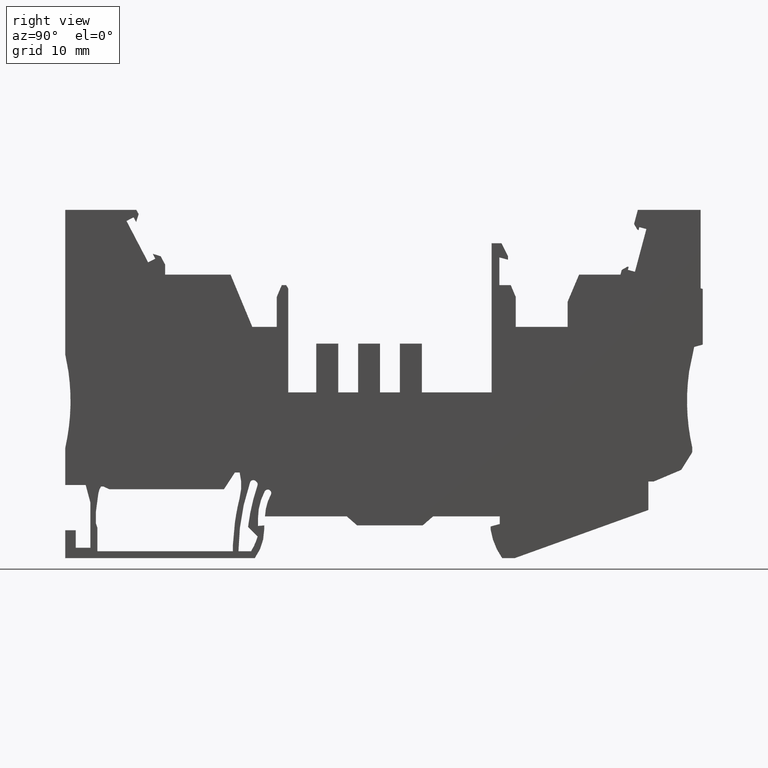
[diagram: clean part render]
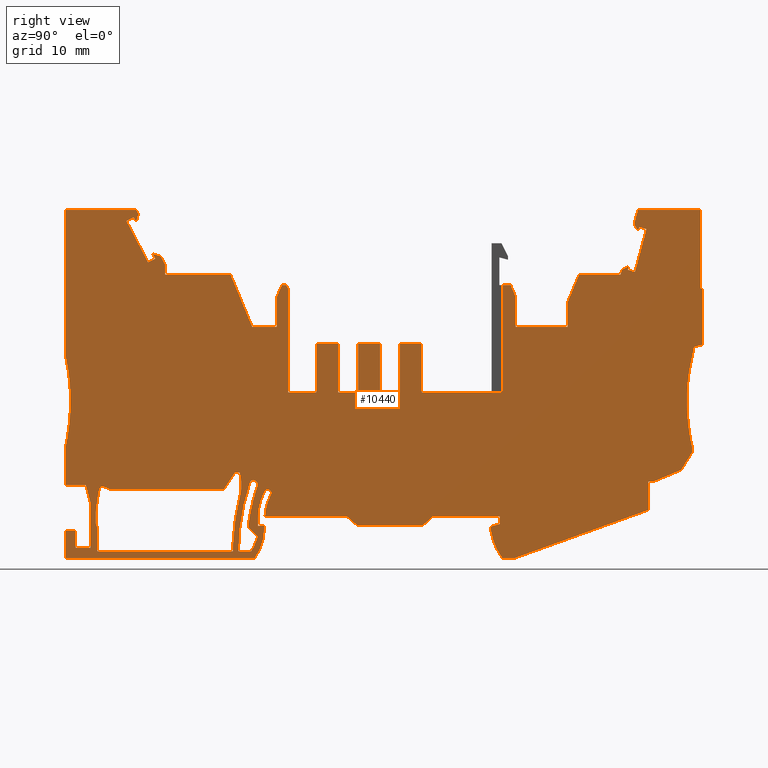
[diagram: same view with one face highlighted and labeled with its STEP entity id]
A machine part, right view. The second image highlights one B-rep face of the part: STEP entity #10440.
In plain terms, the highlighted planar face has unit normal (1, 0, 0).
Its self-contained STEP definition (entity closure, byte-faithful):
#10=CARTESIAN_POINT('',(33.06721397161,-23.3,-6.15));
#20=DIRECTION('',(0.,0.,-1.));
#30=DIRECTION('',(-1.,0.,0.));
#40=AXIS2_PLACEMENT_3D('',#10,#20,#30);
#50=PLANE('',#40);
#60=CARTESIAN_POINT('',(22.5349209169326,-21.8368804165049,-6.15));
#70=DIRECTION('',(3.20064295387432E-15,-1.,0.));
#80=VECTOR('',#70,1.);
#90=LINE('',#60,#80);
#100=CARTESIAN_POINT('',(22.5349209169326,-21.836880416505,-6.15));
#110=VERTEX_POINT('',#100);
#120=CARTESIAN_POINT('',(22.5349209169326,-22.8,-6.15));
#130=VERTEX_POINT('',#120);
#140=EDGE_CURVE('',#110,#130,#90,.T.);
#150=ORIENTED_EDGE('',*,*,#140,.T.);
#160=CARTESIAN_POINT('',(20.5729695493492,0.,-6.15));
#170=DIRECTION('',(0.0894853229047894,-0.995988140985939,0.));
#180=VECTOR('',#170,1.);
#190=LINE('',#160,#180);
#200=CARTESIAN_POINT('',(22.2532908740637,-18.7022861195023,
-6.14999999999988));
#210=VERTEX_POINT('',#200);
#220=EDGE_CURVE('',#210,#110,#190,.T.);
#230=ORIENTED_EDGE('',*,*,#220,.T.);
#240=CARTESIAN_POINT('',(-9.55770809486729,-23.0000000000054,-6.15));
#250=DIRECTION('',(-3.15698436483956E-30,2.78809917608406E-14,-1.));
#260=DIRECTION('',(-1.11140263658882E-12,1.,2.78809917608406E-14));
#270=AXIS2_PLACEMENT_3D('',#240,#250,#260);
#280=CIRCLE('',#270,32.1);
#290=CARTESIAN_POINT('',(21.5695646324235,-15.1576220085502,
-6.15000030391425));
#300=VERTEX_POINT('',#290);
#310=EDGE_CURVE('',#300,#210,#280,.T.);
#320=ORIENTED_EDGE('',*,*,#310,.T.);
#330=CARTESIAN_POINT('',(28.8422919051509,-13.3252907021191,
-6.15000030436831));
#340=DIRECTION('',(-3.15698436483956E-30,2.78809917608406E-14,-1.));
#350=DIRECTION('',(-1.11140263658882E-12,1.,2.78791571475182E-14));
#360=AXIS2_PLACEMENT_3D('',#330,#340,#350);
#370=CIRCLE('',#360,7.5);
#380=CARTESIAN_POINT('',(21.5677944074683,-11.4999999975433,
-6.14999999999995));
#390=VERTEX_POINT('',#380);
#400=EDGE_CURVE('',#300,#390,#370,.T.);
#410=ORIENTED_EDGE('',*,*,#400,.F.);
#420=CARTESIAN_POINT('',(0.,-11.4999999957847,-6.15));
#430=DIRECTION('',(-1.,8.15373601970037E-11,0.));
#440=VECTOR('',#430,1.);
#450=LINE('',#420,#440);
#460=CARTESIAN_POINT('',(22.2428308127525,-11.50013943746,-6.15));
#470=VERTEX_POINT('',#460);
#480=EDGE_CURVE('',#470,#390,#450,.T.);
#490=ORIENTED_EDGE('',*,*,#480,.T.);
#500=CARTESIAN_POINT('',(14.6514870362543,0.,-6.15));
#510=DIRECTION('',(0.550905483155108,-0.834567641734112,0.));
#520=VECTOR('',#510,1.);
#530=LINE('',#500,#520);
#540=CARTESIAN_POINT('',(23.8270000000024,-13.9,-6.15));
#550=VERTEX_POINT('',#540);
#560=EDGE_CURVE('',#470,#550,#530,.T.);
#570=ORIENTED_EDGE('',*,*,#560,.F.);
#580=CARTESIAN_POINT('',(39.2,-13.9,-6.15));
#590=DIRECTION('',(1.,0.,0.));
#600=VECTOR('',#590,1.);
#610=LINE('',#580,#600);
#620=CARTESIAN_POINT('',(40.2999878562288,-13.9,-6.15));
#630=VERTEX_POINT('',#620);
#640=EDGE_CURVE('',#550,#630,#610,.T.);
#650=ORIENTED_EDGE('',*,*,#640,.F.);
#660=CARTESIAN_POINT('',(40.4028689549508,-13.8504536541632,-6.15));
#670=DIRECTION('',(0.900964006862371,0.433893833026585,0.));
#680=VECTOR('',#670,1.);
#690=LINE('',#660,#680);
#700=CARTESIAN_POINT('',(41.0911584410494,-13.51898140768,-6.15));
#710=VERTEX_POINT('',#700);
#720=EDGE_CURVE('',#630,#710,#690,.T.);
#730=ORIENTED_EDGE('',*,*,#720,.F.);
#740=CARTESIAN_POINT('',(41.79721397161,-13.51898140768,-6.15));
#750=DIRECTION('',(-1.,0.,0.));
#760=VECTOR('',#750,1.);
#770=LINE('',#740,#760);
#780=CARTESIAN_POINT('',(41.4591654945625,-13.51898140768,-6.15));
#790=VERTEX_POINT('',#780);
#800=EDGE_CURVE('',#790,#710,#770,.T.);
#810=ORIENTED_EDGE('',*,*,#800,.T.);
#820=CARTESIAN_POINT('',(41.6881023294153,-13.88957188511,-6.15));
#830=DIRECTION('',(-0.525563862455609,0.850754151609466,0.));
#840=VECTOR('',#830,1.);
#850=LINE('',#820,#840);
#860=CARTESIAN_POINT('',(41.6881023294153,-13.88957188511,-6.15));
#870=VERTEX_POINT('',#860);
#880=EDGE_CURVE('',#870,#790,#850,.T.);
#890=ORIENTED_EDGE('',*,*,#880,.T.);
#900=CARTESIAN_POINT('',(41.6881023294144,-13.889571885099,-6.15));
#910=DIRECTION('',(0.258819045102494,-0.965925826289075,0.));
#920=VECTOR('',#910,1.);
#930=LINE('',#900,#920);
#940=CARTESIAN_POINT('',(41.8592582628925,-14.5283345248639,-6.15));
#950=VERTEX_POINT('',#940);
#960=EDGE_CURVE('',#870,#950,#930,.T.);
#970=ORIENTED_EDGE('',*,*,#960,.F.);
#980=CARTESIAN_POINT('',(41.8592582628956,-14.5283345248631,-6.15));
#990=DIRECTION('',(0.130526192219112,-0.991444861373934,0.));
#1000=VECTOR('',#990,1.);
#1010=LINE('',#980,#1000);
#1020=CARTESIAN_POINT('',(42.2,-17.11652497587,-6.15));
#1030=VERTEX_POINT('',#1020);
#1040=EDGE_CURVE('',#950,#1030,#1010,.T.);
#1050=ORIENTED_EDGE('',*,*,#1040,.F.);
#1060=CARTESIAN_POINT('',(42.2,-17.11652497587,-6.15));
#1070=DIRECTION('',(0.,-1.,0.));
#1080=VECTOR('',#1070,1.);
#1090=LINE('',#1060,#1080);
#1100=CARTESIAN_POINT('',(42.2,-18.8,-6.15));
#1110=VERTEX_POINT('',#1100);
#1120=EDGE_CURVE('',#1030,#1110,#1090,.T.);
#1130=ORIENTED_EDGE('',*,*,#1120,.F.);
#1140=CARTESIAN_POINT('',(42.2,-18.8,-6.15));
#1150=DIRECTION('',(-0.316227766016843,-0.948683298050512,0.));
#1160=VECTOR('',#1150,1.);
#1170=LINE('',#1140,#1160);
#1180=CARTESIAN_POINT('',(42.,-19.4,-6.15));
#1190=VERTEX_POINT('',#1180);
#1200=EDGE_CURVE('',#1110,#1190,#1170,.T.);
#1210=ORIENTED_EDGE('',*,*,#1200,.F.);
#1220=CARTESIAN_POINT('',(42.,-21.8,-6.15));
#1230=DIRECTION('',(0.,1.,0.));
#1240=VECTOR('',#1230,1.);
#1250=LINE('',#1220,#1240);
#1260=CARTESIAN_POINT('',(42.,-22.8,-6.15));
#1270=VERTEX_POINT('',#1260);
#1280=EDGE_CURVE('',#1270,#1190,#1250,.T.);
#1290=ORIENTED_EDGE('',*,*,#1280,.T.);
#1300=CARTESIAN_POINT('',(41.,-22.8,-6.15));
#1310=DIRECTION('',(-1.,0.,0.));
#1320=VECTOR('',#1310,1.);
#1330=LINE('',#1300,#1320);
#1340=EDGE_CURVE('',#1270,#130,#1330,.T.);
#1350=ORIENTED_EDGE('',*,*,#1340,.F.);
#1360=EDGE_LOOP('',(#1350,#1290,#1210,#1130,#1050,#970,#890,#810,#730,
#650,#570,#490,#410,#320,#230,#150));
#1370=FACE_BOUND('',#1360,.T.);
#1380=CARTESIAN_POINT('',(39.680769536223,0.,-6.15));
#1390=DIRECTION('',(-0.707106781186545,-0.70710678118655,0.));
#1400=VECTOR('',#1390,1.);
#1410=LINE('',#1380,#1400);
#1420=CARTESIAN_POINT('',(20.3661974207547,-19.3145721154684,
-6.1499999999999));
#1430=VERTEX_POINT('',#1420);
#1440=CARTESIAN_POINT('',(18.9864747969789,-20.6942947392442,
-6.15000000000007));
#1450=VERTEX_POINT('',#1440);
#1460=EDGE_CURVE('',#1430,#1450,#1410,.T.);
#1470=ORIENTED_EDGE('',*,*,#1460,.T.);
#1480=CARTESIAN_POINT('',(-9.55770809486737,-23.0000000000054,
-6.15000030197086));
#1490=DIRECTION('',(-3.15698436483956E-30,2.78809917608406E-14,-1.));
#1500=DIRECTION('',(-1.11140263658882E-12,1.,2.78791571475182E-14));
#1510=AXIS2_PLACEMENT_3D('',#1480,#1490,#1500);
#1520=CIRCLE('',#1510,30.15);
#1530=CARTESIAN_POINT('',(19.0113243592572,-13.3650176629599,-6.15));
#1540=VERTEX_POINT('',#1530);
#1550=EDGE_CURVE('',#1540,#1430,#1520,.T.);
#1560=ORIENTED_EDGE('',*,*,#1550,.T.);
#1570=CARTESIAN_POINT('',(19.4851059920122,-13.2052335446502,
-6.15000030378414));
#1580=DIRECTION('',(-3.15698436483956E-30,2.78809917608406E-14,-1.));
#1590=DIRECTION('',(-1.11140263658882E-12,1.,2.78791571475182E-14));
#1600=AXIS2_PLACEMENT_3D('',#1570,#1580,#1590);
#1610=CIRCLE('',#1600,0.5);
#1620=CARTESIAN_POINT('',(19.1545070239092,-12.830127796959,-6.15));
#1630=VERTEX_POINT('',#1620);
#1640=EDGE_CURVE('',#1540,#1630,#1610,.T.);
#1650=ORIENTED_EDGE('',*,*,#1640,.F.);
#1660=CARTESIAN_POINT('',(0.,-29.711927917599,-6.15));
#1670=DIRECTION('',(-0.750211495889927,-0.661197936653313,0.));
#1680=VECTOR('',#1670,1.);
#1690=LINE('',#1660,#1680);
#1700=CARTESIAN_POINT('',(19.2764839618995,-12.7226235796011,-6.15));
#1710=VERTEX_POINT('',#1700);
#1720=EDGE_CURVE('',#1710,#1630,#1690,.T.);
#1730=ORIENTED_EDGE('',*,*,#1720,.T.);
#1740=CARTESIAN_POINT('',(19.6070829300025,-13.0977293272924,
-6.15000030379175));
#1750=DIRECTION('',(-3.15698436483956E-30,2.78809917608406E-14,-1.));
#1760=DIRECTION('',(-1.11140263658882E-12,1.,2.78791571475182E-14));
#1770=AXIS2_PLACEMENT_3D('',#1740,#1750,#1760);
#1780=CIRCLE('',#1770,0.5);
#1790=CARTESIAN_POINT('',(20.0805373297395,-12.9369781799569,
-6.14999999999972));
#1800=VERTEX_POINT('',#1790);
#1810=EDGE_CURVE('',#1710,#1800,#1780,.T.);
#1820=ORIENTED_EDGE('',*,*,#1810,.F.);
#1830=CARTESIAN_POINT('',(-9.55770809486729,-23.0000000000054,
-6.15000030197086));
#1840=DIRECTION('',(-3.15698436483956E-30,2.78809917608406E-14,-1.));
#1850=DIRECTION('',(-1.11140263658882E-12,1.,2.78791571475182E-14));
#1860=AXIS2_PLACEMENT_3D('',#1830,#1840,#1850);
#1870=CIRCLE('',#1860,31.3);
#1880=CARTESIAN_POINT('',(21.7416529209746,-22.8000000000054,-6.15));
#1890=VERTEX_POINT('',#1880);
#1900=EDGE_CURVE('',#1800,#1890,#1870,.T.);
#1910=ORIENTED_EDGE('',*,*,#1900,.F.);
#1920=CARTESIAN_POINT('',(0.,-22.8000000000054,-6.15));
#1930=DIRECTION('',(1.,8.32667268468868E-17,0.));
#1940=VECTOR('',#1930,1.);
#1950=LINE('',#1920,#1940);
#1960=CARTESIAN_POINT('',(19.9311893542047,-22.8000000000054,
-6.15000000000013));
#1970=VERTEX_POINT('',#1960);
#1980=EDGE_CURVE('',#1970,#1890,#1950,.T.);
#1990=ORIENTED_EDGE('',*,*,#1980,.T.);
#2000=CARTESIAN_POINT('',(27.1422919051327,-18.3000000000054,
-6.15000030426214));
#2010=DIRECTION('',(-3.15698436483956E-30,2.78809917608406E-14,-1.));
#2020=DIRECTION('',(-1.11140263658882E-12,1.,2.78791571475182E-14));
#2030=AXIS2_PLACEMENT_3D('',#2000,#2010,#2020);
#2040=CIRCLE('',#2030,8.5);
#2050=EDGE_CURVE('',#1970,#1450,#2040,.T.);
#2060=ORIENTED_EDGE('',*,*,#2050,.F.);
#2070=EDGE_LOOP('',(#2060,#1990,#1910,#1820,#1730,#1650,#1560,#1470));
#2080=FACE_BOUND('',#2070,.T.);
#2090=CARTESIAN_POINT('',(46.6,-20.7,-6.15));
#2100=DIRECTION('',(0.,-1.,0.));
#2110=VECTOR('',#2100,1.);
#2120=LINE('',#2090,#2110);
#2130=CARTESIAN_POINT('',(46.6,-19.8,-6.15));
#2140=VERTEX_POINT('',#2130);
#2150=CARTESIAN_POINT('',(46.6,-23.8,-6.15));
#2160=VERTEX_POINT('',#2150);
#2170=EDGE_CURVE('',#2140,#2160,#2120,.T.);
#2180=ORIENTED_EDGE('',*,*,#2170,.T.);
#2190=CARTESIAN_POINT('',(45.6,-19.8,-6.15));
#2200=DIRECTION('',(1.,0.,0.));
#2210=VECTOR('',#2200,1.);
#2220=LINE('',#2190,#2210);
#2230=CARTESIAN_POINT('',(45.1,-19.8,-6.15));
#2240=VERTEX_POINT('',#2230);
#2250=EDGE_CURVE('',#2240,#2140,#2220,.T.);
#2260=ORIENTED_EDGE('',*,*,#2250,.T.);
#2270=CARTESIAN_POINT('',(45.1,-20.3,-6.15));
#2280=DIRECTION('',(0.,-1.,0.));
#2290=VECTOR('',#2280,1.);
#2300=LINE('',#2270,#2290);
#2310=CARTESIAN_POINT('',(45.1,-22.3,-6.15));
#2320=VERTEX_POINT('',#2310);
#2330=EDGE_CURVE('',#2240,#2320,#2300,.T.);
#2340=ORIENTED_EDGE('',*,*,#2330,.F.);
#2350=CARTESIAN_POINT('',(44.6,-22.3,-6.15));
#2360=DIRECTION('',(-1.,0.,0.));
#2370=VECTOR('',#2360,1.);
#2380=LINE('',#2350,#2370);
#2390=CARTESIAN_POINT('',(43.,-22.3,-6.15));
#2400=VERTEX_POINT('',#2390);
#2410=EDGE_CURVE('',#2320,#2400,#2380,.T.);
#2420=ORIENTED_EDGE('',*,*,#2410,.F.);
#2430=CARTESIAN_POINT('',(43.,-21.3,-6.15));
#2440=DIRECTION('',(0.,1.,0.));
#2450=VECTOR('',#2440,1.);
#2460=LINE('',#2430,#2450);
#2470=CARTESIAN_POINT('',(43.,-15.800000000004,-6.15));
#2480=VERTEX_POINT('',#2470);
#2490=EDGE_CURVE('',#2400,#2480,#2460,.T.);
#2500=ORIENTED_EDGE('',*,*,#2490,.F.);
#2510=CARTESIAN_POINT('',(43.3407417370993,-14.5283345248901,-6.15));
#2520=DIRECTION('',(0.258819045102492,0.965925826289076,0.));
#2530=VECTOR('',#2520,1.);
#2540=LINE('',#2510,#2530);
#2550=CARTESIAN_POINT('',(43.6698729810788,-13.3,-6.15));
#2560=VERTEX_POINT('',#2550);
#2570=EDGE_CURVE('',#2480,#2560,#2540,.T.);
#2580=ORIENTED_EDGE('',*,*,#2570,.F.);
#2590=CARTESIAN_POINT('',(45.6,-13.3,-6.15));
#2600=DIRECTION('',(-1.,0.,0.));
#2610=VECTOR('',#2600,1.);
#2620=LINE('',#2590,#2610);
#2630=CARTESIAN_POINT('',(46.6,-13.3,-6.15));
#2640=VERTEX_POINT('',#2630);
#2650=EDGE_CURVE('',#2640,#2560,#2620,.T.);
#2660=ORIENTED_EDGE('',*,*,#2650,.T.);
#2670=CARTESIAN_POINT('',(46.6,-12.3,-6.15));
#2680=DIRECTION('',(0.,1.,0.));
#2690=VECTOR('',#2680,1.);
#2700=LINE('',#2670,#2690);
#2710=CARTESIAN_POINT('',(46.6,-7.955879883892,-6.15));
#2720=VERTEX_POINT('',#2710);
#2730=EDGE_CURVE('',#2640,#2720,#2700,.T.);
#2740=ORIENTED_EDGE('',*,*,#2730,.F.);
#2750=CARTESIAN_POINT('',(46.6,-7.955879883892,-6.15));
#2760=DIRECTION('',(-0.192949935044992,0.981208602982125,0.));
#2770=VECTOR('',#2760,1.);
#2780=LINE('',#2750,#2770);
#2790=CARTESIAN_POINT('',(46.299502422452,-6.42775908822236,-6.15));
#2800=VERTEX_POINT('',#2790);
#2810=EDGE_CURVE('',#2720,#2800,#2780,.T.);
#2820=ORIENTED_EDGE('',*,*,#2810,.F.);
#2830=CARTESIAN_POINT('',(46.2703003168786,-6.23236323195401,-6.15));
#2840=DIRECTION('',(-0.147809407142419,0.989015863957807,0.));
#2850=VECTOR('',#2840,1.);
#2860=LINE('',#2830,#2850);
#2870=CARTESIAN_POINT('',(46.0721797643816,-4.90670762461646,-6.15));
#2880=VERTEX_POINT('',#2870);
#2890=EDGE_CURVE('',#2800,#2880,#2860,.T.);
#2900=ORIENTED_EDGE('',*,*,#2890,.F.);
#2910=CARTESIAN_POINT('',(46.0500865595299,-4.67726087360203,-6.15));
#2920=DIRECTION('',(-0.0958457335408387,0.995396200194686,0.));
#2930=VECTOR('',#2920,1.);
#2940=LINE('',#2910,#2930);
#2950=CARTESIAN_POINT('',(45.9216169624126,-3.34305282816361,-6.15));
#2960=VERTEX_POINT('',#2950);
#2970=EDGE_CURVE('',#2880,#2960,#2940,.T.);
#2980=ORIENTED_EDGE('',*,*,#2970,.F.);
#2990=CARTESIAN_POINT('',(45.9115623663568,-3.11276462915628,-6.15));
#3000=DIRECTION('',(-0.043619370679043,0.999048222310397,0.));
#3010=VECTOR('',#3000,1.);
#3020=LINE('',#2990,#3010);
#3030=CARTESIAN_POINT('',(45.853090695627,-1.77354267824827,-6.15));
#3040=VERTEX_POINT('',#3030);
#3050=EDGE_CURVE('',#2960,#3040,#3020,.T.);
#3060=ORIENTED_EDGE('',*,*,#3050,.F.);
#3070=CARTESIAN_POINT('',(45.8551046983529,-1.54288374568327,-6.15));
#3080=DIRECTION('',(0.00873118562841965,0.999961882472288,0.));
#3090=VECTOR('',#3080,1.);
#3100=LINE('',#3070,#3090);
#3110=CARTESIAN_POINT('',(45.86680553391,-0.202814933937308,-6.15));
#3120=VERTEX_POINT('',#3110);
#3130=EDGE_CURVE('',#3040,#3120,#3100,.T.);
#3140=ORIENTED_EDGE('',*,*,#3130,.F.);
#3150=CARTESIAN_POINT('',(45.8808764679374,0.0272428065370036,-6.15));
#3160=DIRECTION('',(0.0610485388176756,0.998134798465732,0.));
#3170=VECTOR('',#3160,1.);
#3180=LINE('',#3150,#3170);
#3190=CARTESIAN_POINT('',(45.9627046160631,1.36512121804485,-6.15));
#3200=VERTEX_POINT('',#3190);
#3210=EDGE_CURVE('',#3120,#3200,#3180,.T.);
#3220=ORIENTED_EDGE('',*,*,#3210,.F.);
#3230=CARTESIAN_POINT('',(45.9887988707165,1.59414746616703,-6.15));
#3240=DIRECTION('',(0.113203255551658,0.993571850915929,0.));
#3250=VECTOR('',#3240,1.);
#3260=LINE('',#3230,#3250);
#3270=CARTESIAN_POINT('',(46.1474029722098,2.9861972788308,-6.15));
#3280=VERTEX_POINT('',#3270);
#3290=EDGE_CURVE('',#3200,#3280,#3260,.T.);
#3300=ORIENTED_EDGE('',*,*,#3290,.F.);
#3310=CARTESIAN_POINT('',(46.1785788230395,3.15325651176216,-6.15));
#3320=DIRECTION('',(0.183448556748339,0.983029311377312,0.));
#3330=VECTOR('',#3320,1.);
#3340=LINE('',#3310,#3330);
#3350=CARTESIAN_POINT('',(46.6,5.41148833833122,-6.15));
#3360=VERTEX_POINT('',#3350);
#3370=EDGE_CURVE('',#3280,#3360,#3340,.T.);
#3380=ORIENTED_EDGE('',*,*,#3370,.F.);
#3390=CARTESIAN_POINT('',(46.6,17.,-6.15));
#3400=DIRECTION('',(0.,-1.,0.));
#3410=VECTOR('',#3400,1.);
#3420=LINE('',#3390,#3410);
#3430=CARTESIAN_POINT('',(46.6,26.2,-6.15));
#3440=VERTEX_POINT('',#3430);
#3450=EDGE_CURVE('',#3440,#3360,#3420,.T.);
#3460=ORIENTED_EDGE('',*,*,#3450,.T.);
#3470=CARTESIAN_POINT('',(36.57749659649,26.2,-6.15));
#3480=DIRECTION('',(1.,0.,0.));
#3490=VECTOR('',#3480,1.);
#3500=LINE('',#3470,#3490);
#3510=CARTESIAN_POINT('',(36.3961370293988,26.2,-6.15));
#3520=VERTEX_POINT('',#3510);
#3530=EDGE_CURVE('',#3520,#3440,#3500,.T.);
#3540=ORIENTED_EDGE('',*,*,#3530,.T.);
#3550=CARTESIAN_POINT('',(36.3118575801415,26.0394127433039,-6.15));
#3560=DIRECTION('',(-0.464709144396825,-0.885463387788547,0.));
#3570=VECTOR('',#3560,1.);
#3580=LINE('',#3550,#3570);
#3590=CARTESIAN_POINT('',(36.0723431659092,25.5830385849567,-6.15));
#3600=VERTEX_POINT('',#3590);
#3610=EDGE_CURVE('',#3520,#3600,#3580,.T.);
#3620=ORIENTED_EDGE('',*,*,#3610,.F.);
#3630=CARTESIAN_POINT('',(36.1093178217786,25.4644089813204,-6.15));
#3640=DIRECTION('',(0.297563030591707,-0.954702174934717,0.));
#3650=VECTOR('',#3640,1.);
#3660=LINE('',#3630,#3650);
#3670=CARTESIAN_POINT('',(36.4300213852102,24.4354626471315,-6.15));
#3680=VERTEX_POINT('',#3670);
#3690=EDGE_CURVE('',#3600,#3680,#3660,.T.);
#3700=ORIENTED_EDGE('',*,*,#3690,.F.);
#3710=CARTESIAN_POINT('',(36.5759067805972,24.7134347464238,-6.15));
#3720=DIRECTION('',(0.46470914439683,0.885463387788545,0.));
#3730=VECTOR('',#3720,1.);
#3740=LINE('',#3710,#3730);
#3750=CARTESIAN_POINT('',(36.7942523684852,25.129473523132,-6.15));
#3760=VERTEX_POINT('',#3750);
#3770=EDGE_CURVE('',#3680,#3760,#3740,.T.);
#3780=ORIENTED_EDGE('',*,*,#3770,.F.);
#3790=CARTESIAN_POINT('',(46.5570360016852,20.017101021204,-6.15));
#3800=DIRECTION('',(-0.88588622757997,0.463902567123884,0.));
#3810=VECTOR('',#3800,1.);
#3820=LINE('',#3790,#3810);
#3830=CARTESIAN_POINT('',(37.81318053896,24.5959023045238,-6.15));
#3840=VERTEX_POINT('',#3830);
#3850=EDGE_CURVE('',#3840,#3760,#3820,.T.);
#3860=ORIENTED_EDGE('',*,*,#3850,.T.);
#3870=CARTESIAN_POINT('',(17.672414162204,-13.8656816800052,-6.15));
#3880=DIRECTION('',(0.463902567123884,0.88588622757997,0.));
#3890=VECTOR('',#3880,1.);
#3900=LINE('',#3870,#3890);
#3910=CARTESIAN_POINT('',(34.7050333392276,18.6604645797334,-6.15));
#3920=VERTEX_POINT('',#3910);
#3930=EDGE_CURVE('',#3920,#3840,#3900,.T.);
#3940=ORIENTED_EDGE('',*,*,#3930,.T.);
#3950=CARTESIAN_POINT('',(21.3545946794648,25.651546023016,-6.15));
#3960=DIRECTION('',(0.88588622757997,-0.463902567123884,0.));
#3970=VECTOR('',#3960,1.);
#3980=LINE('',#3950,#3970);
#3990=CARTESIAN_POINT('',(33.6806998099023,19.196866364806,-6.15));
#4000=VERTEX_POINT('',#3990);
#4010=EDGE_CURVE('',#4000,#3920,#3980,.T.);
#4020=ORIENTED_EDGE('',*,*,#4010,.T.);
#4030=CARTESIAN_POINT('',(33.1732683060683,18.2299991880505,-6.15));
#4040=DIRECTION('',(0.464709144396902,0.885463387788507,0.));
#4050=VECTOR('',#4040,1.);
#4060=LINE('',#4030,#4050);
#4070=CARTESIAN_POINT('',(34.0450675042622,19.8911377320443,-6.15));
#4080=VERTEX_POINT('',#4070);
#4090=EDGE_CURVE('',#4000,#4080,#4060,.T.);
#4100=ORIENTED_EDGE('',*,*,#4090,.F.);
#4110=CARTESIAN_POINT('',(33.7447467198718,19.7975642499763,-6.15));
#4120=DIRECTION('',(-0.954730129518333,-0.297473326182209,0.));
#4130=VECTOR('',#4120,1.);
#4140=LINE('',#4110,#4130);
#4150=CARTESIAN_POINT('',(32.897457964316,19.533567339688,-6.15));
#4160=VERTEX_POINT('',#4150);
#4170=EDGE_CURVE('',#4080,#4160,#4140,.T.);
#4180=ORIENTED_EDGE('',*,*,#4170,.F.);
#4190=CARTESIAN_POINT('',(32.8397074787881,19.4235287463473,-6.15));
#4200=DIRECTION('',(-0.464709144396905,-0.885463387788505,0.));
#4210=VECTOR('',#4200,1.);
#4220=LINE('',#4190,#4210);
#4230=CARTESIAN_POINT('',(32.266,18.3303783879084,-6.15));
#4240=VERTEX_POINT('',#4230);
#4250=EDGE_CURVE('',#4160,#4240,#4220,.T.);
#4260=ORIENTED_EDGE('',*,*,#4250,.F.);
#4270=CARTESIAN_POINT('',(32.266,16.9,-6.15));
#4280=DIRECTION('',(0.,1.,0.));
#4290=VECTOR('',#4280,1.);
#4300=LINE('',#4270,#4290);
#4310=CARTESIAN_POINT('',(32.266,16.9,-6.15));
#4320=VERTEX_POINT('',#4310);
#4330=EDGE_CURVE('',#4320,#4240,#4300,.T.);
#4340=ORIENTED_EDGE('',*,*,#4330,.T.);
#4350=CARTESIAN_POINT('',(32.266,16.9,-6.15));
#4360=DIRECTION('',(-1.,0.,0.));
#4370=VECTOR('',#4360,1.);
#4380=LINE('',#4350,#4370);
#4390=CARTESIAN_POINT('',(22.8749380190397,16.9,-6.15));
#4400=VERTEX_POINT('',#4390);
#4410=EDGE_CURVE('',#4320,#4400,#4380,.T.);
#4420=ORIENTED_EDGE('',*,*,#4410,.F.);
#4430=CARTESIAN_POINT('',(15.8477614609842,0.,-6.15));
#4440=DIRECTION('',(-0.383940706166693,-0.9233577498176,0.));
#4450=VECTOR('',#4440,1.);
#4460=LINE('',#4430,#4450);
#4470=CARTESIAN_POINT('',(19.7563685432499,9.40000000634231,-6.15));
#4480=VERTEX_POINT('',#4470);
#4490=EDGE_CURVE('',#4400,#4480,#4460,.T.);
#4500=ORIENTED_EDGE('',*,*,#4490,.F.);
#4510=CARTESIAN_POINT('',(0.,9.40000000622989,-6.15));
#4520=DIRECTION('',(-1.,-5.69036484598939E-12,0.));
#4530=VECTOR('',#4520,1.);
#4540=LINE('',#4510,#4530);
#4550=CARTESIAN_POINT('',(16.2422919065764,9.40000000632231,-6.15));
#4560=VERTEX_POINT('',#4550);
#4570=EDGE_CURVE('',#4480,#4560,#4540,.T.);
#4580=ORIENTED_EDGE('',*,*,#4570,.F.);
#4590=CARTESIAN_POINT('',(16.2422919065298,17.5999999973573,
-6.15000030358195));
#4600=DIRECTION('',(5.69078117962363E-12,-1.,8.75274645187506E-15));
#4610=VECTOR('',#4600,1.);
#4620=LINE('',#4590,#4610);
#4630=CARTESIAN_POINT('',(16.2422919065519,13.7000000066365,-6.15));
#4640=VERTEX_POINT('',#4630);
#4650=EDGE_CURVE('',#4640,#4560,#4620,.T.);
#4660=ORIENTED_EDGE('',*,*,#4650,.T.);
#4670=CARTESIAN_POINT('',(22.0325543537813,0.,-6.15));
#4680=DIRECTION('',(-0.389303997132755,0.921109330001852,0.));
#4690=VECTOR('',#4680,1.);
#4700=LINE('',#4670,#4690);
#4710=CARTESIAN_POINT('',(15.5237921872909,15.4000000063524,-6.15));
#4720=VERTEX_POINT('',#4710);
#4730=EDGE_CURVE('',#4640,#4720,#4700,.T.);
#4740=ORIENTED_EDGE('',*,*,#4730,.F.);
#4750=CARTESIAN_POINT('',(0.,15.4000000058498,-6.15));
#4760=DIRECTION('',(-1.,1.38777878078144E-17,0.));
#4770=VECTOR('',#4760,1.);
#4780=LINE('',#4750,#4770);
#4790=CARTESIAN_POINT('',(14.8922919075085,15.4000000063524,-6.15));
#4800=VERTEX_POINT('',#4790);
#4810=EDGE_CURVE('',#4720,#4800,#4780,.T.);
#4820=ORIENTED_EDGE('',*,*,#4810,.F.);
#4830=CARTESIAN_POINT('',(6.00109775832072,0.,-6.15));
#4840=DIRECTION('',(-0.499999999999999,-0.866025403784439,0.));
#4850=VECTOR('',#4840,1.);
#4860=LINE('',#4830,#4850);
#4870=CARTESIAN_POINT('',(14.5922919074495,14.8803847639795,-6.15));
#4880=VERTEX_POINT('',#4870);
#4890=EDGE_CURVE('',#4800,#4880,#4860,.T.);
#4900=ORIENTED_EDGE('',*,*,#4890,.F.);
#4910=CARTESIAN_POINT('',(14.5922919074348,17.5999999973555,
-6.15000030347894));
#4920=DIRECTION('',(-5.41384992391869E-12,1.,-8.75274646916442E-15));
#4930=VECTOR('',#4920,1.);
#4940=LINE('',#4910,#4930);
#4950=CARTESIAN_POINT('',(14.5922919075301,5.59246501661189E-13,-6.15));
#4960=VERTEX_POINT('',#4950);
#4970=EDGE_CURVE('',#4960,#4880,#4940,.T.);
#4980=ORIENTED_EDGE('',*,*,#4970,.T.);
#4990=CARTESIAN_POINT('',(0.,5.59449010391911E-13,-6.15));
#5000=DIRECTION('',(-1.,1.38777878078144E-17,0.));
#5010=VECTOR('',#5000,1.);
#5020=LINE('',#4990,#5010);
#5030=CARTESIAN_POINT('',(10.5672919074688,5.63105118089885E-13,-6.15));
#5040=VERTEX_POINT('',#5030);
#5050=EDGE_CURVE('',#4960,#5040,#5020,.T.);
#5060=ORIENTED_EDGE('',*,*,#5050,.F.);
#5070=CARTESIAN_POINT('',(10.5672919074766,7.00000000002896,
-6.15000030322756));
#5080=DIRECTION('',(-1.11129161428636E-12,-1.,1.83461332453697E-18));
#5090=VECTOR('',#5080,1.);
#5100=LINE('',#5070,#5090);
#5110=CARTESIAN_POINT('',(10.5672919074766,7.00000000002896,-6.15));
#5120=VERTEX_POINT('',#5110);
#5130=EDGE_CURVE('',#5120,#5040,#5100,.T.);
#5140=ORIENTED_EDGE('',*,*,#5130,.T.);
#5150=CARTESIAN_POINT('',(0.,7.00000000004071,-6.15));
#5160=DIRECTION('',(1.,-1.11134712543759E-12,0.));
#5170=VECTOR('',#5160,1.);
#5180=LINE('',#5150,#5170);
#5190=CARTESIAN_POINT('',(7.41729204116551,7.00000000003246,-6.15));
#5200=VERTEX_POINT('',#5190);
#5210=EDGE_CURVE('',#5200,#5120,#5180,.T.);
#5220=ORIENTED_EDGE('',*,*,#5210,.T.);
#5230=CARTESIAN_POINT('',(7.4172920411655,7.00000000003246,
-6.1500003030309));
#5240=DIRECTION('',(-1.11129161428636E-12,-1.,1.83461332453697E-18));
#5250=VECTOR('',#5240,1.);
#5260=LINE('',#5230,#5250);
#5270=CARTESIAN_POINT('',(7.41729204115773,5.59346074786855E-13,-6.15));
#5280=VERTEX_POINT('',#5270);
#5290=EDGE_CURVE('',#5200,#5280,#5260,.T.);
#5300=ORIENTED_EDGE('',*,*,#5290,.F.);
#5310=CARTESIAN_POINT('',(4.56729190746896,5.63105118089881E-13,-6.15));
#5320=VERTEX_POINT('',#5310);
#5330=EDGE_CURVE('',#5280,#5320,#5020,.T.);
#5340=ORIENTED_EDGE('',*,*,#5330,.F.);
#5350=CARTESIAN_POINT('',(4.56729190747674,7.00000000004896,
-6.1500003032274));
#5360=DIRECTION('',(-1.11129161428636E-12,-1.,1.83461332453697E-18));
#5370=VECTOR('',#5360,1.);
#5380=LINE('',#5350,#5370);
#5390=CARTESIAN_POINT('',(4.56729190747674,7.00000000004896,-6.15));
#5400=VERTEX_POINT('',#5390);
#5410=EDGE_CURVE('',#5400,#5320,#5380,.T.);
#5420=ORIENTED_EDGE('',*,*,#5410,.T.);
#5430=CARTESIAN_POINT('',(0.,7.00000000005404,-6.15));
#5440=DIRECTION('',(1.,-1.11134712543759E-12,0.));
#5450=VECTOR('',#5440,1.);
#5460=LINE('',#5430,#5450);
#5470=CARTESIAN_POINT('',(1.41729204116563,7.00000000005246,-6.15));
#5480=VERTEX_POINT('',#5470);
#5490=EDGE_CURVE('',#5480,#5400,#5460,.T.);
#5500=ORIENTED_EDGE('',*,*,#5490,.T.);
#5510=CARTESIAN_POINT('',(1.41729204116563,7.00000000005246,
-6.15000030303074));
#5520=DIRECTION('',(-1.11129161428636E-12,-1.,1.83461332453697E-18));
#5530=VECTOR('',#5520,1.);
#5540=LINE('',#5510,#5530);
#5550=CARTESIAN_POINT('',(1.41729204115779,5.61328761250554E-13,-6.15));
#5560=VERTEX_POINT('',#5550);
#5570=EDGE_CURVE('',#5480,#5560,#5540,.T.);
#5580=ORIENTED_EDGE('',*,*,#5570,.F.);
#5590=CARTESIAN_POINT('',(-1.43270809253104,5.5946889321081E-13,-6.15));
#5600=VERTEX_POINT('',#5590);
#5610=EDGE_CURVE('',#5560,#5600,#5020,.T.);
#5620=ORIENTED_EDGE('',*,*,#5610,.F.);
#5630=CARTESIAN_POINT('',(-1.43270809252326,7.0000000000423,
-6.15000030322737));
#5640=DIRECTION('',(-1.11129161428636E-12,-1.,1.83461332453697E-18));
#5650=VECTOR('',#5640,1.);
#5660=LINE('',#5630,#5650);
#5670=CARTESIAN_POINT('',(-1.43270809252326,7.00000000004229,-6.15));
#5680=VERTEX_POINT('',#5670);
#5690=EDGE_CURVE('',#5680,#5600,#5660,.T.);
#5700=ORIENTED_EDGE('',*,*,#5690,.T.);
#5710=CARTESIAN_POINT('',(0.,7.0000000000407,-6.15));
#5720=DIRECTION('',(1.,-1.11134712543759E-12,0.));
#5730=VECTOR('',#5720,1.);
#5740=LINE('',#5710,#5730);
#5750=CARTESIAN_POINT('',(-4.58270795883444,7.0000000000458,-6.15));
#5760=VERTEX_POINT('',#5750);
#5770=EDGE_CURVE('',#5760,#5680,#5740,.T.);
#5780=ORIENTED_EDGE('',*,*,#5770,.T.);
#5790=CARTESIAN_POINT('',(-4.58270795883438,7.00000000004579,
-6.15000030303072));
#5800=DIRECTION('',(-1.11129161428636E-12,-1.,1.83461332453697E-18));
#5810=VECTOR('',#5800,1.);
#5820=LINE('',#5790,#5810);
#5830=CARTESIAN_POINT('',(-4.58270795884222,5.63105118089956E-13,-6.15))
;
#5840=VERTEX_POINT('',#5830);
#5850=EDGE_CURVE('',#5760,#5840,#5820,.T.);
#5860=ORIENTED_EDGE('',*,*,#5850,.F.);
#5870=CARTESIAN_POINT('',(-16.1077080932784,5.596725497469E-13,-6.15));
#5880=VERTEX_POINT('',#5870);
#5890=EDGE_CURVE('',#5840,#5880,#5020,.T.);
#5900=ORIENTED_EDGE('',*,*,#5890,.F.);
#5910=CARTESIAN_POINT('',(-16.1077080911103,17.5999999973214,
-6.15000030156229));
#5920=DIRECTION('',(1.23190097012227E-10,1.,-8.75275449808322E-15));
#5930=VECTOR('',#5920,1.);
#5940=LINE('',#5910,#5930);
#5950=CARTESIAN_POINT('',(-16.1077080913813,15.4000000052724,-6.15));
#5960=VERTEX_POINT('',#5950);
#5970=EDGE_CURVE('',#5880,#5960,#5940,.T.);
#5980=ORIENTED_EDGE('',*,*,#5970,.F.);
#5990=CARTESIAN_POINT('',(0.,15.4000000032881,-6.15));
#6000=DIRECTION('',(-1.,1.23190166401166E-10,0.));
#6010=VECTOR('',#6000,1.);
#6020=LINE('',#5990,#6010);
#6030=CARTESIAN_POINT('',(-17.3392083711217,15.4000000057853,-6.15));
#6040=VERTEX_POINT('',#6030);
#6050=EDGE_CURVE('',#5960,#6040,#6020,.T.);
#6060=ORIENTED_EDGE('',*,*,#6050,.F.);
#6070=CARTESIAN_POINT('',(-23.8479705395359,0.,-6.15));
#6080=DIRECTION('',(-0.389303997242539,-0.921109329955452,0.));
#6090=VECTOR('',#6080,1.);
#6100=LINE('',#6070,#6090);
#6110=CARTESIAN_POINT('',(-18.057708090655,13.7000000059905,-6.15));
#6120=VERTEX_POINT('',#6110);
#6130=EDGE_CURVE('',#6040,#6120,#6100,.T.);
#6140=ORIENTED_EDGE('',*,*,#6130,.F.);
#6150=CARTESIAN_POINT('',(-18.0577080901801,17.5999999973192,
-6.15000030144055));
#6160=DIRECTION('',(1.21770496464002E-10,1.,-8.75275440945361E-15));
#6170=VECTOR('',#6160,1.);
#6180=LINE('',#6150,#6170);
#6190=CARTESIAN_POINT('',(-18.0577080911786,9.40000000599036,-6.15));
#6200=VERTEX_POINT('',#6190);
#6210=EDGE_CURVE('',#6200,#6120,#6180,.T.);
#6220=ORIENTED_EDGE('',*,*,#6210,.T.);
#6230=CARTESIAN_POINT('',(0.,9.40000000373535,-6.15));
#6240=DIRECTION('',(-1.,1.24877760909747E-10,0.));
#6250=VECTOR('',#6240,1.);
#6260=LINE('',#6230,#6250);
#6270=CARTESIAN_POINT('',(-25.5077080911247,9.4000000069207,-6.15));
#6280=VERTEX_POINT('',#6270);
#6290=EDGE_CURVE('',#6200,#6280,#6260,.T.);
#6300=ORIENTED_EDGE('',*,*,#6290,.F.);
#6310=CARTESIAN_POINT('',(-25.5077080922985,0.,-6.15));
#6320=DIRECTION('',(-1.24876650686723E-10,-1.,0.));
#6330=VECTOR('',#6320,1.);
#6340=LINE('',#6310,#6330);
#6350=CARTESIAN_POINT('',(-25.5077080906741,13.0081848300136,-6.15));
#6360=VERTEX_POINT('',#6350);
#6370=EDGE_CURVE('',#6360,#6280,#6340,.T.);
#6380=ORIENTED_EDGE('',*,*,#6370,.T.);
#6390=CARTESIAN_POINT('',(-20.0117499999925,0.,-6.15));
#6400=DIRECTION('',(0.389189189388312,-0.921157844705927,0.));
#6410=VECTOR('',#6400,1.);
#6420=LINE('',#6390,#6410);
#6430=CARTESIAN_POINT('',(-27.1519999999936,16.9,-6.15));
#6440=VERTEX_POINT('',#6430);
#6450=EDGE_CURVE('',#6440,#6360,#6420,.T.);
#6460=ORIENTED_EDGE('',*,*,#6450,.T.);
#6470=CARTESIAN_POINT('',(-27.35092708317,16.9,-6.15));
#6480=DIRECTION('',(-1.,0.,0.));
#6490=VECTOR('',#6480,1.);
#6500=LINE('',#6470,#6490);
#6510=CARTESIAN_POINT('',(-33.09494387269,16.9,-6.15));
#6520=VERTEX_POINT('',#6510);
#6530=EDGE_CURVE('',#6440,#6520,#6500,.T.);
#6540=ORIENTED_EDGE('',*,*,#6530,.F.);
#6550=CARTESIAN_POINT('',(-33.09494387269,16.9,-6.15));
#6560=DIRECTION('',(-0.258819045102496,0.965925826289075,0.));
#6570=VECTOR('',#6560,1.);
#6580=LINE('',#6550,#6570);
#6590=CARTESIAN_POINT('',(-33.2746294515314,17.5705957096236,-6.15));
#6600=VERTEX_POINT('',#6590);
#6610=EDGE_CURVE('',#6520,#6600,#6580,.T.);
#6620=ORIENTED_EDGE('',*,*,#6610,.F.);
#6630=CARTESIAN_POINT('',(-33.3822452918091,17.632727743977,-6.15));
#6640=DIRECTION('',(-0.866025403784429,0.500000000000016,0.));
#6650=VECTOR('',#6640,1.);
#6660=LINE('',#6630,#6650);
#6670=CARTESIAN_POINT('',(-34.0631799124808,18.0258655305223,-6.15));
#6680=VERTEX_POINT('',#6670);
#6690=EDGE_CURVE('',#6600,#6680,#6660,.T.);
#6700=ORIENTED_EDGE('',*,*,#6690,.F.);
#6710=CARTESIAN_POINT('',(-34.1423224809533,18.0275919992676,-6.15));
#6720=DIRECTION('',(0.999762145049908,-0.0218094778756262,0.));
#6730=VECTOR('',#6720,1.);
#6740=LINE('',#6710,#6730);
#6750=CARTESIAN_POINT('',(-34.2778582282087,18.0305486664066,-6.15));
#6760=VERTEX_POINT('',#6750);
#6770=EDGE_CURVE('',#6760,#6680,#6740,.T.);
#6780=ORIENTED_EDGE('',*,*,#6770,.T.);
#6790=CARTESIAN_POINT('',(-36.4723364231578,26.2204527860595,-6.15));
#6800=DIRECTION('',(0.258819045102493,-0.965925826289076,0.));
#6810=VECTOR('',#6800,1.);
#6820=LINE('',#6790,#6810);
#6830=CARTESIAN_POINT('',(-34.1580417937504,17.5833876454262,-6.15));
#6840=VERTEX_POINT('',#6830);
#6850=EDGE_CURVE('',#6760,#6840,#6820,.T.);
#6860=ORIENTED_EDGE('',*,*,#6850,.F.);
#6870=CARTESIAN_POINT('',(-45.0646371430905,14.6609742293978,-6.15));
#6880=DIRECTION('',(0.965925826289076,0.258819045102493,0.));
#6890=VECTOR('',#6880,1.);
#6900=LINE('',#6870,#6890);
#6910=CARTESIAN_POINT('',(-35.1722639113516,17.3116276480696,-6.15));
#6920=VERTEX_POINT('',#6910);
#6930=EDGE_CURVE('',#6920,#6840,#6900,.T.);
#6940=ORIENTED_EDGE('',*,*,#6930,.T.);
#6950=CARTESIAN_POINT('',(-24.1483828803522,-23.8300564562195,-6.15));
#6960=DIRECTION('',(-0.258819045102493,0.965925826289076,0.));
#6970=VECTOR('',#6960,1.);
#6980=LINE('',#6950,#6970);
#6990=CARTESIAN_POINT('',(-36.8157648477505,23.4452566450016,-6.15));
#7000=VERTEX_POINT('',#6990);
#7010=EDGE_CURVE('',#6920,#7000,#6980,.T.);
#7020=ORIENTED_EDGE('',*,*,#7010,.F.);
#7030=CARTESIAN_POINT('',(-44.9455445347695,21.2668887432222,-6.15));
#7040=DIRECTION('',(0.965925826289076,0.258819045102493,0.));
#7050=VECTOR('',#7040,1.);
#7060=LINE('',#7030,#7050);
#7070=CARTESIAN_POINT('',(-35.8015427301503,23.7170166423583,-6.15));
#7080=VERTEX_POINT('',#7070);
#7090=EDGE_CURVE('',#7000,#7080,#7060,.T.);
#7100=ORIENTED_EDGE('',*,*,#7090,.F.);
#7110=CARTESIAN_POINT('',(-36.4723364231578,26.2204527860595,-6.15));
#7120=DIRECTION('',(0.258819045102493,-0.965925826289076,0.));
#7130=VECTOR('',#7120,1.);
#7140=LINE('',#7110,#7130);
#7150=CARTESIAN_POINT('',(-35.6817262956924,23.2698556213795,-6.15));
#7160=VERTEX_POINT('',#7150);
#7170=EDGE_CURVE('',#7080,#7160,#7140,.T.);
#7180=ORIENTED_EDGE('',*,*,#7170,.F.);
#7190=CARTESIAN_POINT('',(-35.5036286011107,23.3779266375407,-6.15));
#7200=DIRECTION('',(-0.854914676412275,-0.518768634417015,0.));
#7210=VECTOR('',#7200,1.);
#7220=LINE('',#7190,#7210);
#7230=CARTESIAN_POINT('',(-35.4981509885655,23.3812504938954,-6.15));
#7240=VERTEX_POINT('',#7230);
#7250=EDGE_CURVE('',#7240,#7160,#7220,.T.);
#7260=ORIENTED_EDGE('',*,*,#7250,.T.);
#7270=CARTESIAN_POINT('',(-35.4868904023718,23.4007544013059,-6.15));
#7280=DIRECTION('',(0.50000000000002,0.866025403784427,0.));
#7290=VECTOR('',#7280,1.);
#7300=LINE('',#7270,#7290);
#7310=CARTESIAN_POINT('',(-35.0428811676751,24.1698009548303,-6.15));
#7320=VERTEX_POINT('',#7310);
#7330=EDGE_CURVE('',#7240,#7320,#7300,.T.);
#7340=ORIENTED_EDGE('',*,*,#7330,.F.);
#7350=CARTESIAN_POINT('',(-35.0750430752862,24.2898308281033,-6.15));
#7360=DIRECTION('',(-0.258819045102493,0.965925826289076,0.));
#7370=VECTOR('',#7360,1.);
#7380=LINE('',#7350,#7370);
#7390=CARTESIAN_POINT('',(-35.5868713623027,26.2,-6.15));
#7400=VERTEX_POINT('',#7390);
#7410=EDGE_CURVE('',#7320,#7400,#7380,.T.);
#7420=ORIENTED_EDGE('',*,*,#7410,.F.);
#7430=CARTESIAN_POINT('',(-44.1,26.2,-6.15));
#7440=DIRECTION('',(1.,0.,0.));
#7450=VECTOR('',#7440,1.);
#7460=LINE('',#7430,#7450);
#7470=CARTESIAN_POINT('',(-44.6,26.2,-6.15));
#7480=VERTEX_POINT('',#7470);
#7490=EDGE_CURVE('',#7480,#7400,#7460,.T.);
#7500=ORIENTED_EDGE('',*,*,#7490,.T.);
#7510=CARTESIAN_POINT('',(-44.6,24.,-6.15));
#7520=DIRECTION('',(0.,1.,0.));
#7530=VECTOR('',#7520,1.);
#7540=LINE('',#7510,#7530);
#7550=CARTESIAN_POINT('',(-44.6,14.93033903092,-6.15));
#7560=VERTEX_POINT('',#7550);
#7570=EDGE_CURVE('',#7560,#7480,#7540,.T.);
#7580=ORIENTED_EDGE('',*,*,#7570,.T.);
#7590=CARTESIAN_POINT('',(-44.6,14.93033903092,-6.15));
#7600=DIRECTION('',(-0.965901284400104,-0.258910619315296,0.));
#7610=VECTOR('',#7600,1.);
#7620=LINE('',#7590,#7610);
#7630=CARTESIAN_POINT('',(-44.9,14.8499237886493,-6.15));
#7640=VERTEX_POINT('',#7630);
#7650=EDGE_CURVE('',#7560,#7640,#7620,.T.);
#7660=ORIENTED_EDGE('',*,*,#7650,.F.);
#7670=CARTESIAN_POINT('',(-44.9,7.003389186242,-6.15));
#7680=DIRECTION('',(0.,1.,0.));
#7690=VECTOR('',#7680,1.);
#7700=LINE('',#7670,#7690);
#7710=CARTESIAN_POINT('',(-44.9,6.84992378864715,-6.15));
#7720=VERTEX_POINT('',#7710);
#7730=EDGE_CURVE('',#7720,#7640,#7700,.T.);
#7740=ORIENTED_EDGE('',*,*,#7730,.T.);
#7750=CARTESIAN_POINT('',(-44.7517638090243,6.81020402098614,-6.15));
#7760=DIRECTION('',(0.965925826289076,-0.258819045102494,0.));
#7770=VECTOR('',#7760,1.);
#7780=LINE('',#7750,#7770);
#7790=CARTESIAN_POINT('',(-43.6780249056014,6.5224965489319,-6.15));
#7800=VERTEX_POINT('',#7790);
#7810=EDGE_CURVE('',#7720,#7800,#7780,.T.);
#7820=ORIENTED_EDGE('',*,*,#7810,.F.);
#7830=CARTESIAN_POINT('',(-42.9785788230396,3.15325651176028,-6.15));
#7840=DIRECTION('',(-0.203263777322592,0.979124015040256,0.));
#7850=VECTOR('',#7840,1.);
#7860=LINE('',#7830,#7850);
#7870=CARTESIAN_POINT('',(-42.9516668007187,3.02362098252418,-6.15));
#7880=VERTEX_POINT('',#7870);
#7890=EDGE_CURVE('',#7880,#7800,#7860,.T.);
#7900=ORIENTED_EDGE('',*,*,#7890,.T.);
#7910=CARTESIAN_POINT('',(-42.9144397392507,2.69688321694953,-6.15));
#7920=DIRECTION('',(0.113203199935617,-0.993571857252578,0.));
#7930=VECTOR('',#7920,1.);
#7940=LINE('',#7910,#7930);
#7950=CARTESIAN_POINT('',(-42.7627045851102,1.3651206961407,-6.15));
#7960=VERTEX_POINT('',#7950);
#7970=EDGE_CURVE('',#7880,#7960,#7940,.T.);
#7980=ORIENTED_EDGE('',*,*,#7970,.F.);
#7990=CARTESIAN_POINT('',(-42.7486324201092,1.13504283463749,-6.15));
#8000=DIRECTION('',(0.0610485401950395,-0.998134798381488,0.));
#8010=VECTOR('',#8000,1.);
#8020=LINE('',#7990,#8010);
#8030=CARTESIAN_POINT('',(-42.6669257297385,-0.200849729854205,-6.15));
#8040=VERTEX_POINT('',#8030);
#8050=EDGE_CURVE('',#7960,#8040,#8020,.T.);
#8060=ORIENTED_EDGE('',*,*,#8050,.F.);
#8070=CARTESIAN_POINT('',(-42.6647927445015,-0.433334770628932,-6.15));
#8080=DIRECTION('',(0.00917433424116138,-0.999957914910038,0.));
#8090=VECTOR('',#8080,1.);
#8100=LINE('',#8070,#8090);
#8110=CARTESIAN_POINT('',(-42.6525998499648,-1.76230111053671,-6.15));
#8120=VERTEX_POINT('',#8110);
#8130=EDGE_CURVE('',#8040,#8120,#8100,.T.);
#8140=ORIENTED_EDGE('',*,*,#8130,.F.);
#8150=CARTESIAN_POINT('',(-42.66315050971,-2.00395081297779,-6.15));
#8160=DIRECTION('',(-0.0436194116412051,-0.99904822052195,0.));
#8170=VECTOR('',#8160,1.);
#8180=LINE('',#8150,#8170);
#8190=CARTESIAN_POINT('',(-42.7216170540383,-3.34305409001771,-6.15));
#8200=VERTEX_POINT('',#8190);
#8210=EDGE_CURVE('',#8120,#8200,#8180,.T.);
#8220=ORIENTED_EDGE('',*,*,#8210,.F.);
#8230=CARTESIAN_POINT('',(-42.7437102181586,-3.57250032880707,-6.15));
#8240=DIRECTION('',(-0.095845770464712,-0.995396196639321,0.));
#8250=VECTOR('',#8240,1.);
#8260=LINE('',#8230,#8250);
#8270=CARTESIAN_POINT('',(-42.8721798601965,-4.90670832200482,-6.15));
#8280=VERTEX_POINT('',#8270);
#8290=EDGE_CURVE('',#8200,#8280,#8260,.T.);
#8300=ORIENTED_EDGE('',*,*,#8290,.F.);
#8310=CARTESIAN_POINT('',(-42.9062510616358,-5.13468403527903,-6.15));
#8320=DIRECTION('',(-0.147809423041625,-0.989015861581654,0.));
#8330=VECTOR('',#8320,1.);
#8340=LINE('',#8310,#8330);
#8350=CARTESIAN_POINT('',(-43.1034302227757,-6.45404050070408,-6.15));
#8360=VERTEX_POINT('',#8350);
#8370=EDGE_CURVE('',#8280,#8360,#8340,.T.);
#8380=ORIENTED_EDGE('',*,*,#8370,.F.);
#8390=CARTESIAN_POINT('',(-43.1503275241814,-6.68622007790617,-6.15));
#8400=DIRECTION('',(-0.197988716376735,-0.98020429920884,0.));
#8410=VECTOR('',#8400,1.);
#8420=LINE('',#8390,#8410);
#8430=CARTESIAN_POINT('',(-43.4,-7.9223007933641,-6.15));
#8440=VERTEX_POINT('',#8430);
#8450=EDGE_CURVE('',#8360,#8440,#8420,.T.);
#8460=ORIENTED_EDGE('',*,*,#8450,.F.);
#8470=CARTESIAN_POINT('',(-43.4,-8.4561886792468,-6.15));
#8480=DIRECTION('',(0.,1.,0.));
#8490=VECTOR('',#8480,1.);
#8500=LINE('',#8470,#8490);
#8510=CARTESIAN_POINT('',(-43.4,-8.5999999999917,-6.15));
#8520=VERTEX_POINT('',#8510);
#8530=EDGE_CURVE('',#8520,#8440,#8500,.T.);
#8540=ORIENTED_EDGE('',*,*,#8530,.T.);
#8550=CARTESIAN_POINT('',(-43.323594035806,-8.72183523545613,-6.15));
#8560=DIRECTION('',(0.531293112499175,-0.847188071570262,0.));
#8570=VECTOR('',#8560,1.);
#8580=LINE('',#8550,#8570);
#8590=CARTESIAN_POINT('',(-41.8139999999931,-11.1290000000028,-6.15));
#8600=VERTEX_POINT('',#8590);
#8610=EDGE_CURVE('',#8520,#8600,#8580,.T.);
#8620=ORIENTED_EDGE('',*,*,#8610,.F.);
#8630=CARTESIAN_POINT('',(-38.9584172542171,-12.3357978675273,-6.15));
#8640=DIRECTION('',(-0.921121510781072,0.389275175648789,0.));
#8650=VECTOR('',#8640,1.);
#8660=LINE('',#8630,#8650);
#8670=CARTESIAN_POINT('',(-37.86,-12.8,-6.15));
#8680=VERTEX_POINT('',#8670);
#8690=EDGE_CURVE('',#8680,#8600,#8660,.T.);
#8700=ORIENTED_EDGE('',*,*,#8690,.T.);
#8710=CARTESIAN_POINT('',(-37.75868543622,-12.8,-6.15));
#8720=DIRECTION('',(1.,0.,0.));
#8730=VECTOR('',#8720,1.);
#8740=LINE('',#8710,#8730);
#8750=CARTESIAN_POINT('',(-37.1,-12.8,-6.15));
#8760=VERTEX_POINT('',#8750);
#8770=EDGE_CURVE('',#8680,#8760,#8740,.T.);
#8780=ORIENTED_EDGE('',*,*,#8770,.F.);
#8790=CARTESIAN_POINT('',(-37.1,-12.8,-6.15));
#8800=DIRECTION('',(0.,-1.,0.));
#8810=VECTOR('',#8800,1.);
#8820=LINE('',#8790,#8810);
#8830=CARTESIAN_POINT('',(-37.1,-16.887574660562,-6.15));
#8840=VERTEX_POINT('',#8830);
#8850=EDGE_CURVE('',#8760,#8840,#8820,.T.);
#8860=ORIENTED_EDGE('',*,*,#8850,.F.);
#8870=CARTESIAN_POINT('',(0.,-30.2443965404153,-6.15));
#8880=DIRECTION('',(0.94088076895422,-0.338737920245307,0.));
#8890=VECTOR('',#8880,1.);
#8900=LINE('',#8870,#8890);
#8910=CARTESIAN_POINT('',(-17.9000000000034,-23.7999999999997,-6.15));
#8920=VERTEX_POINT('',#8910);
#8930=EDGE_CURVE('',#8840,#8920,#8900,.T.);
#8940=ORIENTED_EDGE('',*,*,#8930,.F.);
#8950=CARTESIAN_POINT('',(0.,-23.7999999999993,-6.15));
#8960=DIRECTION('',(-1.,-1.85407245112401E-14,0.));
#8970=VECTOR('',#8960,1.);
#8980=LINE('',#8950,#8970);
#8990=CARTESIAN_POINT('',(-16.1166517464498,-23.7999999999996,-6.15));
#9000=VERTEX_POINT('',#8990);
#9010=EDGE_CURVE('',#9000,#8920,#8980,.T.);
#9020=ORIENTED_EDGE('',*,*,#9010,.T.);
#9030=CARTESIAN_POINT('',(-23.8516807726934,-18.284628211702,
-6.15000030107852));
#9040=DIRECTION('',(2.76409465618456E-30,-2.78809917608406E-14,1.));
#9050=DIRECTION('',(1.,-1.38777878078144E-17,1.73209703673921E-18));
#9060=AXIS2_PLACEMENT_3D('',#9030,#9040,#9050);
#9070=CIRCLE('',#9060,9.499999999999);
#9080=CARTESIAN_POINT('',(-14.4577080933169,-19.6999999999996,
-6.15000000000004));
#9090=VERTEX_POINT('',#9080);
#9100=EDGE_CURVE('',#9000,#9090,#9070,.T.);
#9110=ORIENTED_EDGE('',*,*,#9100,.F.);
#9120=CARTESIAN_POINT('',(-14.4577080933426,17.5999999973232,
-6.15000030166531));
#9130=DIRECTION('',(6.9022565440946E-13,-1.,8.75274676406595E-15));
#9140=VECTOR('',#9130,1.);
#9150=LINE('',#9120,#9140);
#9160=CARTESIAN_POINT('',(-14.4577080933172,-19.2483339501599,-6.15));
#9170=VERTEX_POINT('',#9160);
#9180=EDGE_CURVE('',#9170,#9090,#9150,.T.);
#9190=ORIENTED_EDGE('',*,*,#9180,.T.);
#9200=CARTESIAN_POINT('',(0.,-23.1222651581681,-6.15));
#9210=DIRECTION('',(-0.965925826289086,0.258819045102457,0.));
#9220=VECTOR('',#9210,1.);
#9230=LINE('',#9200,#9220);
#9240=CARTESIAN_POINT('',(-15.7577080933175,-18.8999999999995,-6.15));
#9250=VERTEX_POINT('',#9240);
#9260=EDGE_CURVE('',#9170,#9250,#9230,.T.);
#9270=ORIENTED_EDGE('',*,*,#9260,.F.);
#9280=CARTESIAN_POINT('',(-15.7577080933175,17.5999999973218,
-6.15000030158416));
#9290=DIRECTION('',(4.16333634234432E-17,-1.,8.75274680715677E-15));
#9300=VECTOR('',#9290,1.);
#9310=LINE('',#9280,#9300);
#9320=CARTESIAN_POINT('',(-15.7577080933175,-17.8000000000056,-6.15));
#9330=VERTEX_POINT('',#9320);
#9340=EDGE_CURVE('',#9330,#9250,#9310,.T.);
#9350=ORIENTED_EDGE('',*,*,#9340,.T.);
#9360=CARTESIAN_POINT('',(0.,-17.8000000000056,-6.15));
#9370=DIRECTION('',(1.,-1.38777878078144E-17,0.));
#9380=VECTOR('',#9370,1.);
#9390=LINE('',#9360,#9380);
#9400=CARTESIAN_POINT('',(-6.20000000000003,-17.8000000000056,-6.15));
#9410=VERTEX_POINT('',#9400);
#9420=EDGE_CURVE('',#9330,#9410,#9390,.T.);
#9430=ORIENTED_EDGE('',*,*,#9420,.F.);
#9440=CARTESIAN_POINT('',(0.,-23.1733333333331,-6.15));
#9450=DIRECTION('',(0.75568908278983,-0.654930538417827,0.));
#9460=VECTOR('',#9450,1.);
#9470=LINE('',#9440,#9460);
#9480=CARTESIAN_POINT('',(-4.69999999999997,-19.1,-6.15));
#9490=VERTEX_POINT('',#9480);
#9500=EDGE_CURVE('',#9410,#9490,#9470,.T.);
#9510=ORIENTED_EDGE('',*,*,#9500,.F.);
#9520=CARTESIAN_POINT('',(0.,-19.1,-6.15));
#9530=DIRECTION('',(1.,5.55111512313131E-17,0.));
#9540=VECTOR('',#9530,1.);
#9550=LINE('',#9520,#9540);
#9560=CARTESIAN_POINT('',(4.69999999999451,-19.1,-6.15));
#9570=VERTEX_POINT('',#9560);
#9580=EDGE_CURVE('',#9490,#9570,#9550,.T.);
#9590=ORIENTED_EDGE('',*,*,#9580,.F.);
#9600=CARTESIAN_POINT('',(0.,-23.1733333333284,-6.15));
#9610=DIRECTION('',(0.755689082789831,0.654930538417826,0.));
#9620=VECTOR('',#9610,1.);
#9630=LINE('',#9600,#9620);
#9640=CARTESIAN_POINT('',(6.19999999999459,-17.8000000000056,-6.15));
#9650=VERTEX_POINT('',#9640);
#9660=EDGE_CURVE('',#9570,#9650,#9630,.T.);
#9670=ORIENTED_EDGE('',*,*,#9660,.F.);
#9680=CARTESIAN_POINT('',(0.,-17.8000000000056,-6.15));
#9690=DIRECTION('',(1.,-1.38777878078144E-17,0.));
#9700=VECTOR('',#9690,1.);
#9710=LINE('',#9680,#9700);
#9720=CARTESIAN_POINT('',(17.9361249167064,-17.8000000000056,
-6.14999999999999));
#9730=VERTEX_POINT('',#9720);
#9740=EDGE_CURVE('',#9650,#9730,#9710,.T.);
#9750=ORIENTED_EDGE('',*,*,#9740,.F.);
#9760=CARTESIAN_POINT('',(10.6422919051823,-18.1000000000056,
-6.15000030323202));
#9770=DIRECTION('',(-2.76409465618456E-30,2.78809917608406E-14,-1.));
#9780=DIRECTION('',(-1.11134712543759E-12,1.,2.78791571475182E-14));
#9790=AXIS2_PLACEMENT_3D('',#9760,#9770,#9780);
#9800=CIRCLE('',#9790,7.3);
#9810=CARTESIAN_POINT('',(17.0937079373382,-14.6839743589951,
-6.14999999999991));
#9820=VERTEX_POINT('',#9810);
#9830=EDGE_CURVE('',#9820,#9730,#9800,.T.);
#9840=ORIENTED_EDGE('',*,*,#9830,.T.);
#9850=CARTESIAN_POINT('',(17.5355857477513,-14.4500000000056,
-6.15000030366241));
#9860=DIRECTION('',(-2.76409465618456E-30,2.78809917608406E-14,-1.));
#9870=DIRECTION('',(-1.11134712543759E-12,1.,2.78791571475182E-14));
#9880=AXIS2_PLACEMENT_3D('',#9850,#9860,#9870);
#9890=CIRCLE('',#9880,0.5);
#9900=CARTESIAN_POINT('',(17.9774635581803,-14.2160256410463,
-6.14999999999989));
#9910=VERTEX_POINT('',#9900);
#9920=EDGE_CURVE('',#9820,#9910,#9890,.T.);
#9930=ORIENTED_EDGE('',*,*,#9920,.F.);
#9940=CARTESIAN_POINT('',(10.6422919051823,-18.1000000000056,
-6.15000030323202));
#9950=DIRECTION('',(-2.76409465618456E-30,2.78809917608406E-14,-1.));
#9960=DIRECTION('',(-1.11134712543759E-12,1.,2.78791571475182E-14));
#9970=AXIS2_PLACEMENT_3D('',#9940,#9950,#9960);
#9980=CIRCLE('',#9970,8.3);
#9990=CARTESIAN_POINT('',(18.9422919051823,-18.1000000000056,-6.15));
#10000=VERTEX_POINT('',#9990);
#10010=EDGE_CURVE('',#9910,#10000,#9980,.T.);
#10020=ORIENTED_EDGE('',*,*,#10010,.F.);
#10030=CARTESIAN_POINT('',(18.9422919057665,17.5999999973603,
-6.15000030375052));
#10040=DIRECTION('',(-8.32667268468866E-17,1.,-8.75274680715425E-15));
#10050=VECTOR('',#10040,1.);
#10060=LINE('',#10030,#10050);
#10070=CARTESIAN_POINT('',(18.9422919057665,-19.1787397972241,-6.15));
#10080=VERTEX_POINT('',#10070);
#10090=EDGE_CURVE('',#10080,#10000,#10060,.T.);
#10100=ORIENTED_EDGE('',*,*,#10090,.T.);
#10110=CARTESIAN_POINT('',(0.,-17.5215039942706,-6.15));
#10120=DIRECTION('',(-0.996194698091745,0.0871557427476619,0.));
#10130=VECTOR('',#10120,1.);
#10140=LINE('',#10110,#10130);
#10150=CARTESIAN_POINT('',(18.0422919051823,-19.0999999999997,-6.15));
#10160=VERTEX_POINT('',#10150);
#10170=EDGE_CURVE('',#10080,#10160,#10140,.T.);
#10180=ORIENTED_EDGE('',*,*,#10170,.F.);
#10190=CARTESIAN_POINT('',(18.0422919051823,17.5999999973593,
-6.15000030369432));
#10200=DIRECTION('',(-8.32667268468866E-17,1.,-8.75274680715425E-15));
#10210=VECTOR('',#10200,1.);
#10220=LINE('',#10190,#10210);
#10230=CARTESIAN_POINT('',(18.0422919051823,-19.6564659966308,-6.15));
#10240=VERTEX_POINT('',#10230);
#10250=EDGE_CURVE('',#10240,#10160,#10220,.T.);
#10260=ORIENTED_EDGE('',*,*,#10250,.T.);
#10270=CARTESIAN_POINT('',(25.0422919051823,-19.6564659966308,
-6.15000030413101));
#10280=DIRECTION('',(-2.76409465618456E-30,2.78809917608406E-14,-1.));
#10290=DIRECTION('',(-1.11134712543759E-12,1.,2.78791571475182E-14));
#10300=AXIS2_PLACEMENT_3D('',#10270,#10280,#10290);
#10310=CIRCLE('',#10300,7.);
#10320=CARTESIAN_POINT('',(19.4003838978744,-23.8,-6.15));
#10330=VERTEX_POINT('',#10320);
#10340=EDGE_CURVE('',#10330,#10240,#10310,.T.);
#10350=ORIENTED_EDGE('',*,*,#10340,.T.);
#10360=CARTESIAN_POINT('',(45.6,-23.8,-6.15));
#10370=DIRECTION('',(-1.,0.,0.));
#10380=VECTOR('',#10370,1.);
#10390=LINE('',#10360,#10380);
#10400=EDGE_CURVE('',#2160,#10330,#10390,.T.);
#10410=ORIENTED_EDGE('',*,*,#10400,.T.);
#10420=EDGE_LOOP('',(#10410,#10350,#10260,#10180,#10100,#10020,#9930,
#9840,#9750,#9670,#9590,#9510,#9430,#9350,#9270,#9190,#9110,#9020,#8940,
#8860,#8780,#8700,#8620,#8540,#8460,#8380,#8300,#8220,#8140,#8060,#7980,
#7900,#7820,#7740,#7660,#7580,#7500,#7420,#7340,#7260,#7180,#7100,#7020,
#6940,#6860,#6780,#6700,#6620,#6540,#6460,#6380,#6300,#6220,#6140,#6060,
#5980,#5900,#5860,#5780,#5700,#5620,#5580,#5500,#5420,#5340,#5300,#5220,
#5140,#5060,#4980,#4900,#4820,#4740,#4660,#4580,#4500,#4420,#4340,#4260,
#4180,#4100,#4020,#3940,#3860,#3780,#3700,#3620,#3540,#3460,#3380,#3300,
#3220,#3140,#3060,#2980,#2900,#2820,#2740,#2660,#2580,#2500,#2420,#2340,
#2260,#2180));
#10430=FACE_OUTER_BOUND('',#10420,.T.);
#10440=ADVANCED_FACE('',(#1370,#2080,#10430),#50,.T.);